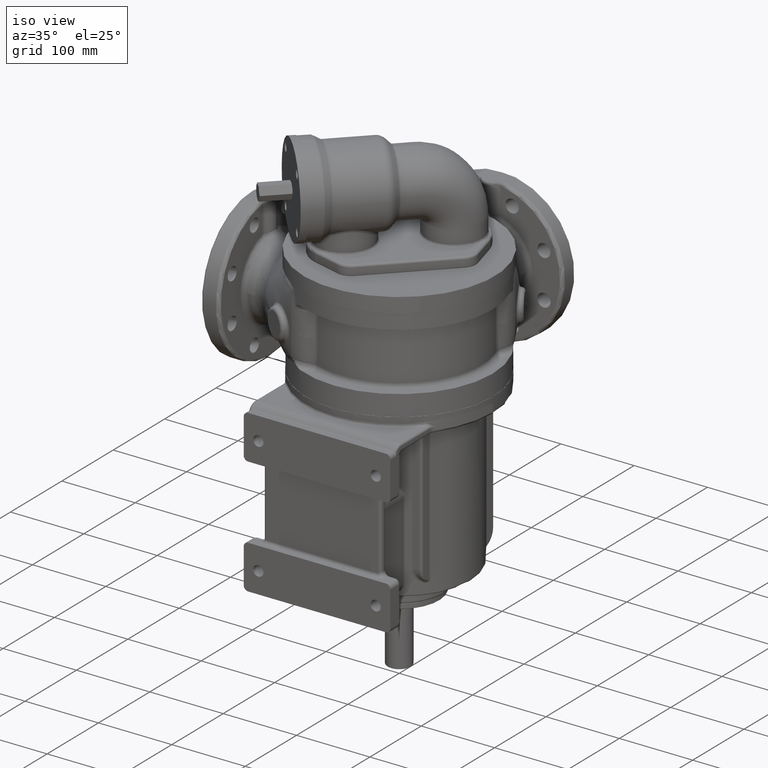
[diagram: clean part render]
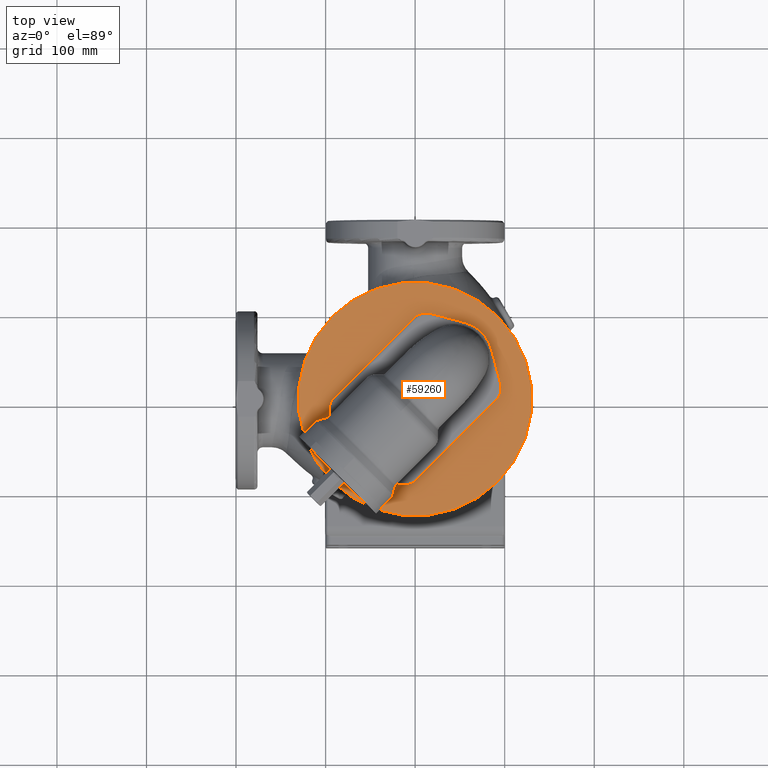
[diagram: tour spotlight — one face highlighted and labeled with its STEP entity id]
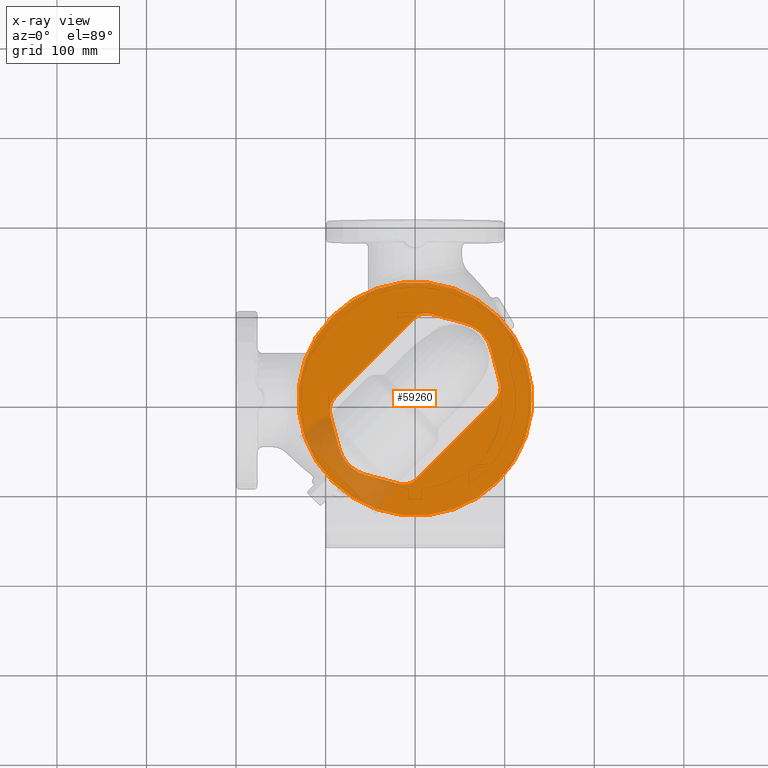
[diagram: x-ray of the same camera — body ghosted, this tour face saturated]
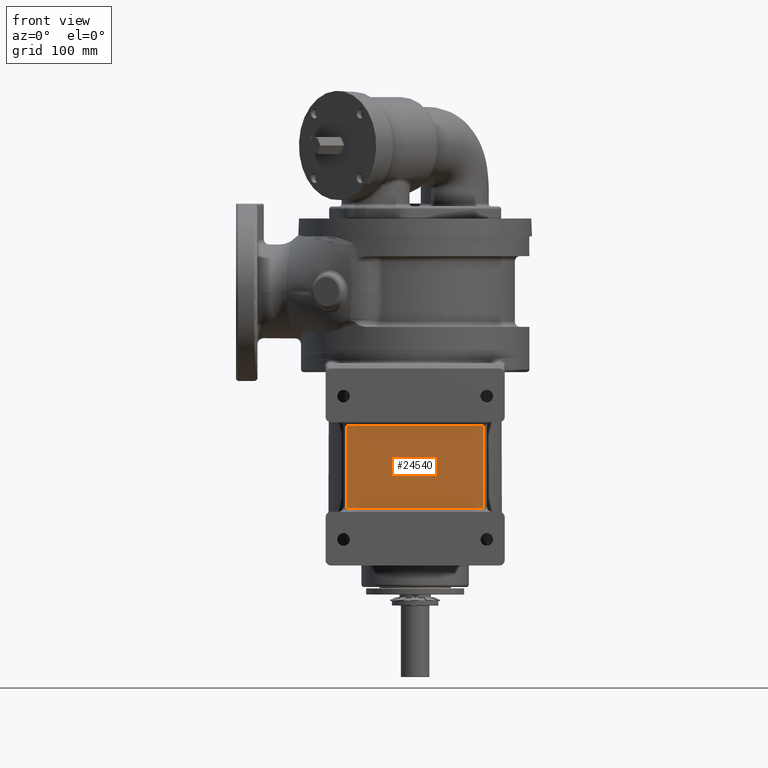
[diagram: tour spotlight — one face highlighted and labeled with its STEP entity id]
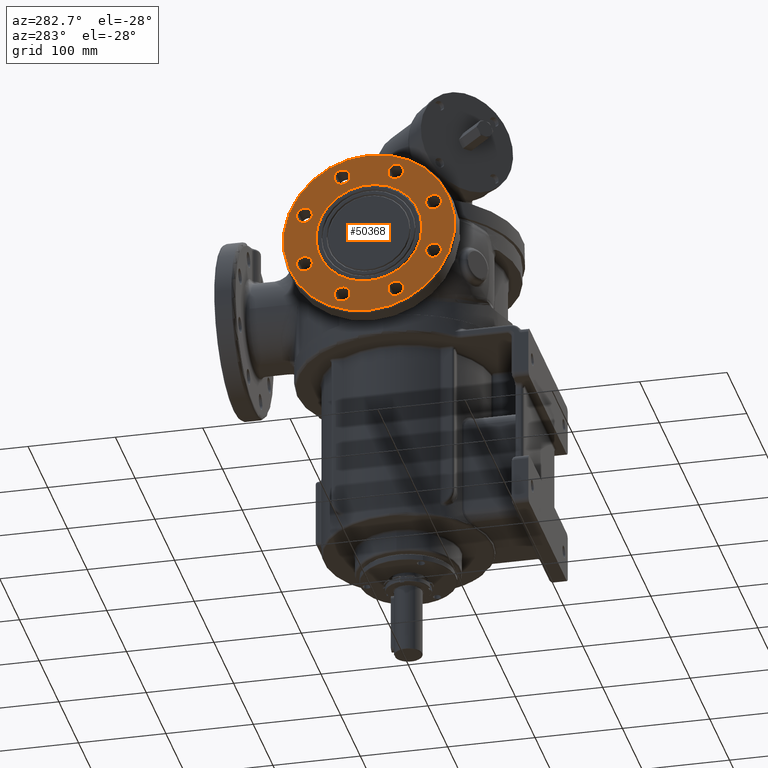
[diagram: tour spotlight — one face highlighted and labeled with its STEP entity id]
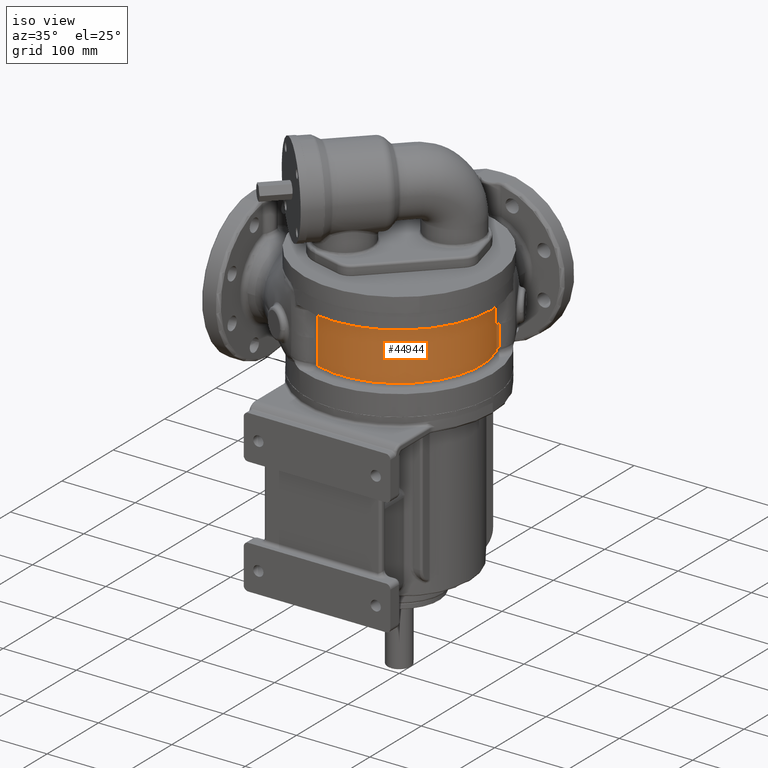
[diagram: tour spotlight — one face highlighted and labeled with its STEP entity id]
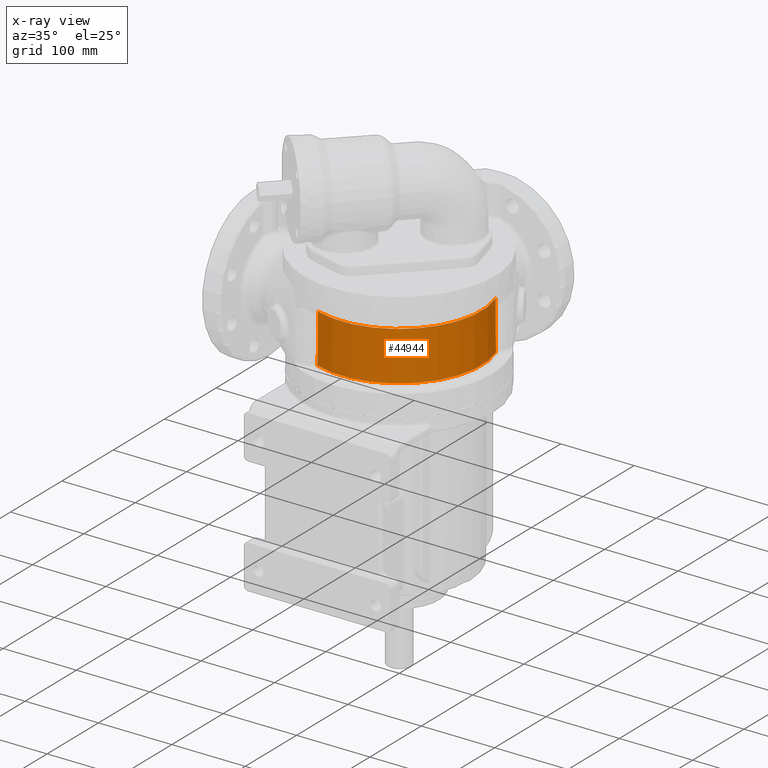
[diagram: x-ray of the same camera — body ghosted, this tour face saturated]
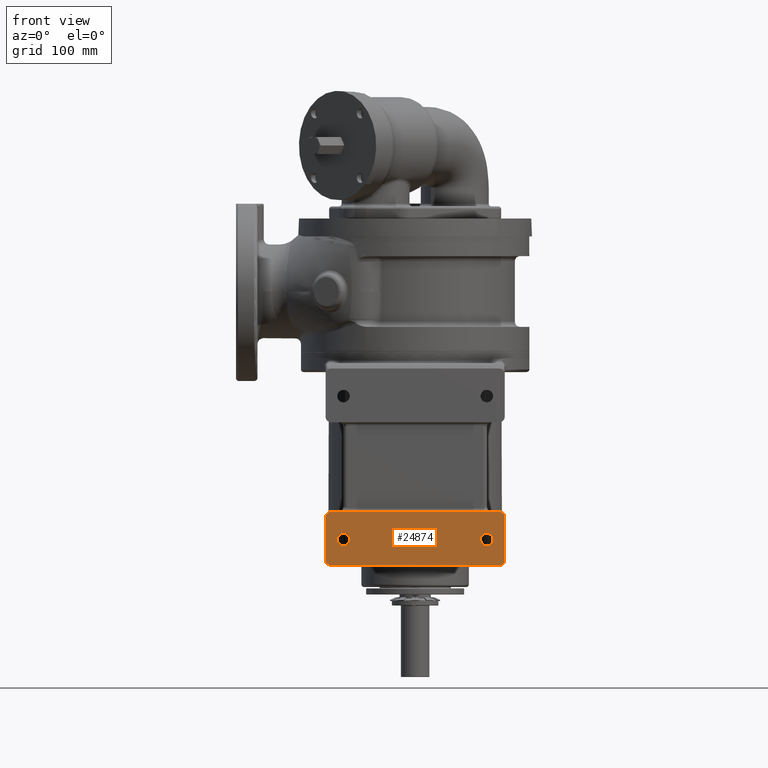
[diagram: tour spotlight — one face highlighted and labeled with its STEP entity id]
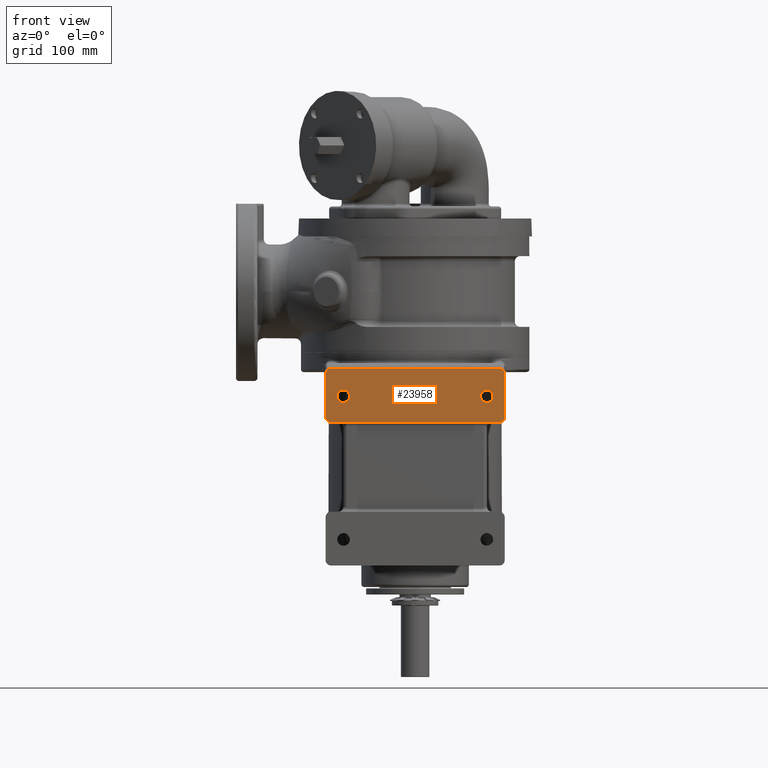
[diagram: tour spotlight — one face highlighted and labeled with its STEP entity id]
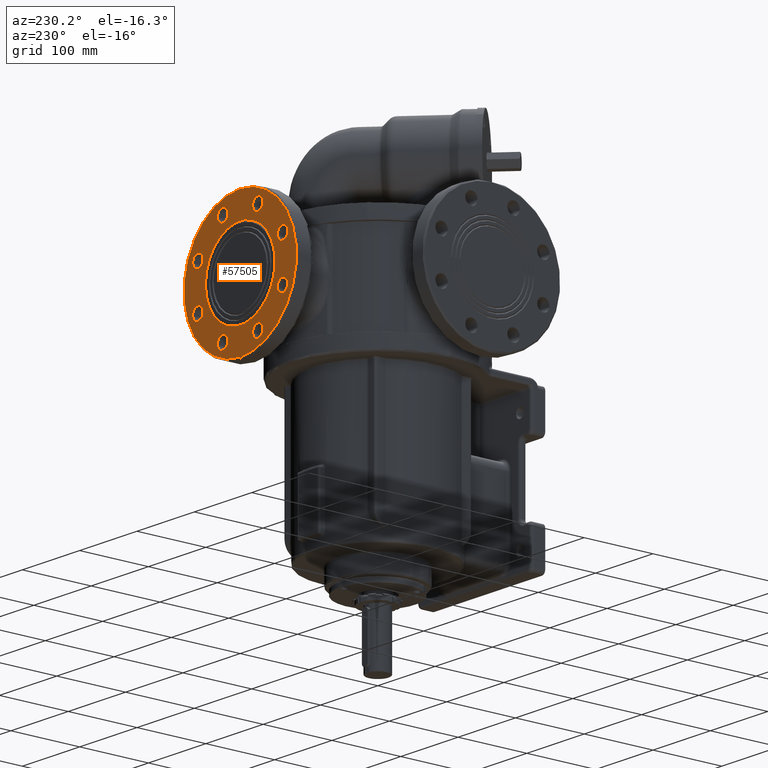
[diagram: tour spotlight — one face highlighted and labeled with its STEP entity id]
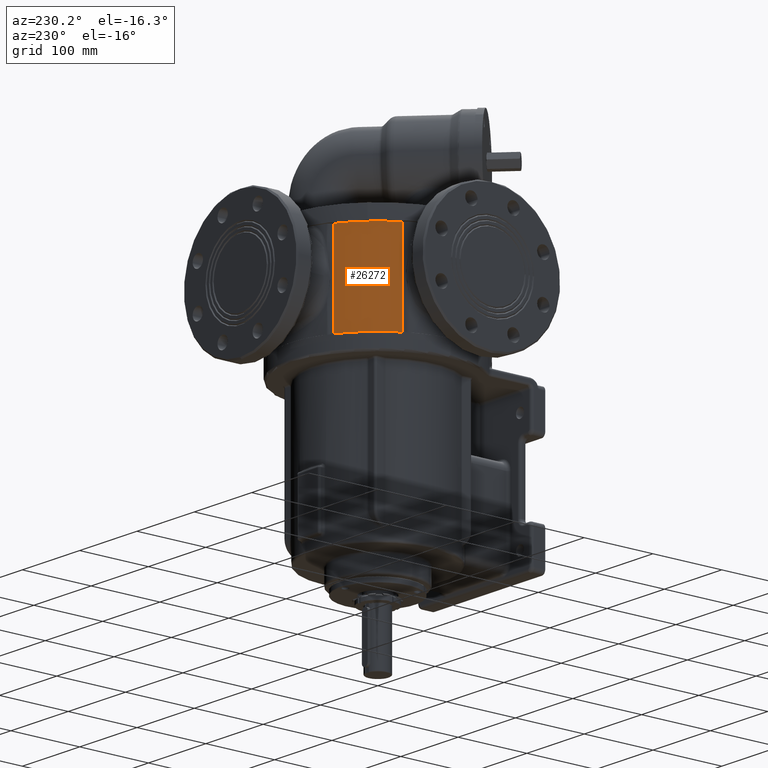
[diagram: tour spotlight — one face highlighted and labeled with its STEP entity id]
A machine part: a face-by-face anatomy tour. The part has 786 B-rep faces; the first image is the clean iso view, then the 8 largest visible faces are spotlighted one at a time (largest first), each with its STEP entity span.

Face 1 — top view, entity #59260. An x-ray twin of the same camera follows (body ghosted, this face saturated) — the face is partly hidden behind the body. In plain terms, the highlighted planar face has unit normal (0, 0, -1).
Definition (entity closure, byte-faithful):
#4889=CARTESIAN_POINT('',(4.151211584959E-13,-2.059281486263E-13,1.575E2));
#4890=DIRECTION('',(0.E0,0.E0,1.E0));
#4891=DIRECTION('',(-7.071067811865E-1,7.071067811865E-1,0.E0));
#4892=AXIS2_PLACEMENT_3D('',#4889,#4890,#4891);
#4908=CARTESIAN_POINT('',(4.151211584959E-13,-2.059281486263E-13,1.575E2));
#4909=DIRECTION('',(0.E0,0.E0,1.E0));
#4910=DIRECTION('',(7.071067811865E-1,-7.071067811865E-1,0.E0));
#4911=AXIS2_PLACEMENT_3D('',#4908,#4909,#4910);
#13292=DIRECTION('',(9.659258262891E-1,-2.588190451025E-1,0.E0));
#13293=VECTOR('',#13292,3.897114317030E1);
#13294=CARTESIAN_POINT('',(1.744672404163E1,9.494426693568E1,1.575E2));
#13295=LINE('',#13294,#13293);
#13301=CARTESIAN_POINT('',(4.419417382416E1,4.419417382416E1,1.575E2));
#13302=DIRECTION('',(0.E0,0.E0,1.E0));
#13303=DIRECTION('',(9.659258262891E-1,2.588190451024E-1,0.E0));
#13304=AXIS2_PLACEMENT_3D('',#13301,#13302,#13303);
#13311=DIRECTION('',(2.588190451025E-1,-9.659258262891E-1,0.E0));
#13312=VECTOR('',#13311,3.897114317030E1);
#13313=CARTESIAN_POINT('',(8.485779287379E1,5.508995770983E1,1.575E2));
#13314=LINE('',#13313,#13312);
#13320=CARTESIAN_POINT('',(7.601397897755E1,1.237436867076E1,1.575E2));
#13321=DIRECTION('',(0.E0,0.E0,1.E0));
#13322=DIRECTION('',(7.071067811865E-1,-7.071067811866E-1,0.E0));
#13323=AXIS2_PLACEMENT_3D('',#13320,#13321,#13322);
#13330=DIRECTION('',(-7.071067811865E-1,-7.071067811865E-1,0.E0));
#13331=VECTOR('',#13330,1.25E2);
#13332=CARTESIAN_POINT('',(8.987191156481E1,-1.483563916494E0,1.575E2));
#13333=LINE('',#13332,#13331);
#13339=CARTESIAN_POINT('',(-1.237436867076E1,-7.601397897755E1,1.575E2));
#13340=DIRECTION('',(0.E0,0.E0,1.E0));
#13341=DIRECTION('',(-2.588190451026E-1,-9.659258262891E-1,0.E0));
#13342=AXIS2_PLACEMENT_3D('',#13339,#13340,#13341);
#13349=DIRECTION('',(-9.659258262891E-1,2.588190451025E-1,0.E0));
#13350=VECTOR('',#13349,3.897114317030E1);
#13351=CARTESIAN_POINT('',(-1.744672404163E1,-9.494426693568E1,1.575E2));
#13352=LINE('',#13351,#13350);
#13358=CARTESIAN_POINT('',(-4.419417382416E1,-4.419417382416E1,1.575E2));
#13359=DIRECTION('',(0.E0,0.E0,1.E0));
#13360=DIRECTION('',(-9.659258262891E-1,-2.588190451025E-1,0.E0));
#13361=AXIS2_PLACEMENT_3D('',#13358,#13359,#13360);
#13368=DIRECTION('',(-2.588190451025E-1,9.659258262891E-1,0.E0));
#13369=VECTOR('',#13368,3.897114317030E1);
#13370=CARTESIAN_POINT('',(-8.485779287379E1,-5.508995770984E1,1.575E2));
#13371=LINE('',#13370,#13369);
#13377=CARTESIAN_POINT('',(-7.601397897755E1,-1.237436867076E1,1.575E2));
#13378=DIRECTION('',(0.E0,0.E0,1.E0));
#13379=DIRECTION('',(-7.071067811866E-1,7.071067811865E-1,0.E0));
#13380=AXIS2_PLACEMENT_3D('',#13377,#13378,#13379);
#13387=DIRECTION('',(7.071067811865E-1,7.071067811865E-1,0.E0));
#13388=VECTOR('',#13387,1.25E2);
#13389=CARTESIAN_POINT('',(-8.987191156481E1,1.483563916493E0,1.575E2));
#13390=LINE('',#13389,#13388);
#13396=CARTESIAN_POINT('',(1.237436867076E1,7.601397897755E1,1.575E2));
#13397=DIRECTION('',(0.E0,0.E0,1.E0));
#13398=DIRECTION('',(2.588190451026E-1,9.659258262890E-1,0.E0));
#13399=AXIS2_PLACEMENT_3D('',#13396,#13397,#13398);
#20380=CARTESIAN_POINT('',(9.227743494484E1,-9.227743494484E1,1.575E2));
#20381=CARTESIAN_POINT('',(-9.227743494484E1,9.227743494484E1,1.575E2));
#20382=VERTEX_POINT('',#20380);
#20383=VERTEX_POINT('',#20381);
#20426=CARTESIAN_POINT('',(1.744672404163E1,9.494426693568E1,1.575E2));
#20427=CARTESIAN_POINT('',(5.508995770983E1,8.485779287379E1,1.575E2));
#20428=VERTEX_POINT('',#20426);
#20429=VERTEX_POINT('',#20427);
#20430=CARTESIAN_POINT('',(-1.483563916494E0,8.987191156481E1,1.575E2));
#20431=VERTEX_POINT('',#20430);
#20432=CARTESIAN_POINT('',(-8.987191156481E1,1.483563916493E0,1.575E2));
#20433=VERTEX_POINT('',#20432);
#20434=CARTESIAN_POINT('',(-9.494426693568E1,-1.744672404163E1,1.575E2));
#20435=VERTEX_POINT('',#20434);
#20436=CARTESIAN_POINT('',(-8.485779287379E1,-5.508995770984E1,1.575E2));
#20437=VERTEX_POINT('',#20436);
#20438=CARTESIAN_POINT('',(-5.508995770983E1,-8.485779287379E1,1.575E2));
#20439=VERTEX_POINT('',#20438);
#20440=CARTESIAN_POINT('',(-1.744672404163E1,-9.494426693568E1,1.575E2));
#20441=VERTEX_POINT('',#20440);
#20442=CARTESIAN_POINT('',(1.483563916495E0,-8.987191156481E1,1.575E2));
#20443=VERTEX_POINT('',#20442);
#20444=CARTESIAN_POINT('',(8.987191156481E1,-1.483563916494E0,1.575E2));
#20445=VERTEX_POINT('',#20444);
#20446=CARTESIAN_POINT('',(9.494426693568E1,1.744672404163E1,1.575E2));
#20447=VERTEX_POINT('',#20446);
#20448=CARTESIAN_POINT('',(8.485779287379E1,5.508995770983E1,1.575E2));
#20449=VERTEX_POINT('',#20448);
#59225=CARTESIAN_POINT('',(4.096656353416E-13,-2.004726254720E-13,1.575E2));
#59226=DIRECTION('',(0.E0,0.E0,-1.E0));
#59227=DIRECTION('',(-7.071067811865E-1,-7.071067811865E-1,0.E0));
#59228=AXIS2_PLACEMENT_3D('',#59225,#59226,#59227);
#59229=PLANE('',#59228);
#59230=ORIENTED_EDGE('',*,*,#25825,.F.);
#59231=ORIENTED_EDGE('',*,*,#25798,.F.);
#59232=EDGE_LOOP('',(#59230,#59231));
#59233=FACE_OUTER_BOUND('',#59232,.F.);
#59235=ORIENTED_EDGE('',*,*,#59234,.F.);
#59237=ORIENTED_EDGE('',*,*,#59236,.T.);
#59239=ORIENTED_EDGE('',*,*,#59238,.F.);
#59241=ORIENTED_EDGE('',*,*,#59240,.T.);
#59243=ORIENTED_EDGE('',*,*,#59242,.F.);
#59245=ORIENTED_EDGE('',*,*,#59244,.T.);
#59247=ORIENTED_EDGE('',*,*,#59246,.F.);
#59249=ORIENTED_EDGE('',*,*,#59248,.T.);
#59251=ORIENTED_EDGE('',*,*,#59250,.F.);
#59253=ORIENTED_EDGE('',*,*,#59252,.T.);
#59255=ORIENTED_EDGE('',*,*,#59254,.F.);
#59257=ORIENTED_EDGE('',*,*,#59256,.T.);
#59258=EDGE_LOOP('',(#59235,#59237,#59239,#59241,#59243,#59245,#59247,#59249,
#59251,#59253,#59255,#59257));
#59259=FACE_BOUND('',#59258,.F.);
#59260=ADVANCED_FACE('',(#59233,#59259),#59229,.F.);
#4893=CIRCLE('',#4892,1.305E2);
#4912=CIRCLE('',#4911,1.305E2);
#13305=CIRCLE('',#13304,4.209807621135E1);
#13324=CIRCLE('',#13323,1.959807621135E1);
#13343=CIRCLE('',#13342,1.959807621135E1);
#13362=CIRCLE('',#13361,4.209807621135E1);
#13381=CIRCLE('',#13380,1.959807621135E1);
#13400=CIRCLE('',#13399,1.959807621135E1);
#25798=EDGE_CURVE('',#20383,#20382,#4893,.T.);
#25825=EDGE_CURVE('',#20382,#20383,#4912,.T.);
#59234=EDGE_CURVE('',#20428,#20429,#13295,.T.);
#59236=EDGE_CURVE('',#20428,#20431,#13400,.T.);
#59238=EDGE_CURVE('',#20433,#20431,#13390,.T.);
#59240=EDGE_CURVE('',#20433,#20435,#13381,.T.);
#59242=EDGE_CURVE('',#20437,#20435,#13371,.T.);
#59244=EDGE_CURVE('',#20437,#20439,#13362,.T.);
#59246=EDGE_CURVE('',#20441,#20439,#13352,.T.);
#59248=EDGE_CURVE('',#20441,#20443,#13343,.T.);
#59250=EDGE_CURVE('',#20445,#20443,#13333,.T.);
#59252=EDGE_CURVE('',#20445,#20447,#13324,.T.);
#59254=EDGE_CURVE('',#20449,#20447,#13314,.T.);
#59256=EDGE_CURVE('',#20449,#20429,#13305,.T.);

Face 2 — front view, entity #24540. In plain terms, the highlighted planar face has unit normal (0, -1, 0).
Definition (entity closure, byte-faithful):
#3702=DIRECTION('',(0.E0,8.671710692516E-13,1.E0));
#3703=VECTOR('',#3702,9.2E1);
#3704=CARTESIAN_POINT('',(7.600000000001E1,-1.499999996378E2,-1.66E2));
#3705=LINE('',#3704,#3703);
#3706=DIRECTION('',(1.E0,5.246797148796E-13,0.E0));
#3707=VECTOR('',#3706,1.52E2);
#3708=CARTESIAN_POINT('',(-7.600000000001E1,-1.499999996378E2,-7.4E1));
#3709=LINE('',#3708,#3707);
#3710=DIRECTION('',(-1.E0,5.248666998101E-13,0.E0));
#3711=VECTOR('',#3710,1.52E2);
#3712=CARTESIAN_POINT('',(7.600000000001E1,-1.499999996378E2,-1.66E2));
#3713=LINE('',#3712,#3711);
#3784=DIRECTION('',(0.E0,8.668621376273E-13,-1.E0));
#3785=VECTOR('',#3784,9.2E1);
#3786=CARTESIAN_POINT('',(-7.600000000001E1,-1.499999996378E2,-7.4E1));
#3787=LINE('',#3786,#3785);
#19010=CARTESIAN_POINT('',(-7.600000000001E1,-1.499999996378E2,-7.4E1));
#19011=CARTESIAN_POINT('',(7.600000000001E1,-1.499999996377E2,-7.4E1));
#19012=VERTEX_POINT('',#19010);
#19013=VERTEX_POINT('',#19011);
#19022=CARTESIAN_POINT('',(7.600000000001E1,-1.499999996378E2,-1.66E2));
#19023=CARTESIAN_POINT('',(-7.600000000001E1,-1.499999996377E2,-1.66E2));
#19024=VERTEX_POINT('',#19022);
#19025=VERTEX_POINT('',#19023);
#24526=CARTESIAN_POINT('',(8.E1,-1.5E2,-1.7E2));
#24527=DIRECTION('',(0.E0,-1.E0,0.E0));
#24528=DIRECTION('',(0.E0,0.E0,1.E0));
#24529=AXIS2_PLACEMENT_3D('',#24526,#24527,#24528);
#24530=PLANE('',#24529);
#24532=ORIENTED_EDGE('',*,*,#24531,.T.);
#24533=ORIENTED_EDGE('',*,*,#24516,.F.);
#24535=ORIENTED_EDGE('',*,*,#24534,.T.);
#24537=ORIENTED_EDGE('',*,*,#24536,.F.);
#24538=EDGE_LOOP('',(#24532,#24533,#24535,#24537));
#24539=FACE_OUTER_BOUND('',#24538,.F.);
#24540=ADVANCED_FACE('',(#24539),#24530,.T.);
#24516=EDGE_CURVE('',#19024,#19013,#3705,.T.);
#24531=EDGE_CURVE('',#19012,#19013,#3709,.T.);
#24534=EDGE_CURVE('',#19024,#19025,#3713,.T.);
#24536=EDGE_CURVE('',#19012,#19025,#3787,.T.);

Face 3 — auxiliary view, entity #50368. In plain terms, the highlighted planar face has unit normal (-1, 0, 0).
Definition (entity closure, byte-faithful):
#10026=CARTESIAN_POINT('',(-2.000000000329E2,-1.728029751951E-8,
1.740000000377E2));
#10045=CARTESIAN_POINT('',(-2.E2,1.794671120480E-9,7.600000000034E1));
#10046=DIRECTION('',(1.E0,0.E0,0.E0));
#10047=DIRECTION('',(0.E0,-4.083120006959E-9,-1.E0));
#10048=AXIS2_PLACEMENT_3D('',#10045,#10046,#10047);
#10050=CARTESIAN_POINT('',(-2.E2,1.760421184273E-9,7.6E1));
#10051=DIRECTION('',(1.E0,0.E0,0.E0));
#10052=DIRECTION('',(0.E0,-1.936570488275E-10,1.E0));
#10053=AXIS2_PLACEMENT_3D('',#10050,#10051,#10052);
#10055=CARTESIAN_POINT('',(-2.E2,-3.061467458921E1,2.089637399097E0));
#10056=DIRECTION('',(-1.E0,0.E0,0.E0));
#10057=DIRECTION('',(0.E0,1.E0,0.E0));
#10058=AXIS2_PLACEMENT_3D('',#10055,#10056,#10057);
#10060=CARTESIAN_POINT('',(-2.E2,-3.061467458921E1,2.089637399097E0));
#10061=DIRECTION('',(-1.E0,0.E0,0.E0));
#10062=DIRECTION('',(0.E0,-1.E0,0.E0));
#10063=AXIS2_PLACEMENT_3D('',#10060,#10061,#10062);
#10065=CARTESIAN_POINT('',(-2.E2,-7.391036260090E1,4.538532541079E1));
#10066=DIRECTION('',(-1.E0,0.E0,0.E0));
#10067=DIRECTION('',(0.E0,7.071067811866E-1,-7.071067811865E-1));
#10068=AXIS2_PLACEMENT_3D('',#10065,#10066,#10067);
#10070=CARTESIAN_POINT('',(-2.E2,-7.391036260090E1,4.538532541079E1));
#10071=DIRECTION('',(-1.E0,0.E0,0.E0));
#10072=DIRECTION('',(0.E0,-7.071067811865E-1,7.071067811865E-1));
#10073=AXIS2_PLACEMENT_3D('',#10070,#10071,#10072);
#10075=CARTESIAN_POINT('',(-2.E2,-7.391036260090E1,1.066146745892E2));
#10076=DIRECTION('',(-1.E0,0.E0,0.E0));
#10077=DIRECTION('',(0.E0,0.E0,-1.E0));
#10078=AXIS2_PLACEMENT_3D('',#10075,#10076,#10077);
#10080=CARTESIAN_POINT('',(-2.E2,-7.391036260090E1,1.066146745892E2));
#10081=DIRECTION('',(-1.E0,0.E0,0.E0));
#10082=DIRECTION('',(0.E0,0.E0,1.E0));
#10083=AXIS2_PLACEMENT_3D('',#10080,#10081,#10082);
#10085=CARTESIAN_POINT('',(-2.E2,-3.061467458921E1,1.499103626009E2));
#10086=DIRECTION('',(-1.E0,0.E0,0.E0));
#10087=DIRECTION('',(0.E0,-7.071067811865E-1,-7.071067811866E-1));
#10088=AXIS2_PLACEMENT_3D('',#10085,#10086,#10087);
#10090=CARTESIAN_POINT('',(-2.E2,-3.061467458921E1,1.499103626009E2));
#10091=DIRECTION('',(-1.E0,0.E0,0.E0));
#10092=DIRECTION('',(0.E0,7.071067811865E-1,7.071067811865E-1));
#10093=AXIS2_PLACEMENT_3D('',#10090,#10091,#10092);
#10095=CARTESIAN_POINT('',(-2.E2,3.061467458921E1,1.499103626009E2));
#10096=DIRECTION('',(-1.E0,0.E0,0.E0));
#10097=DIRECTION('',(0.E0,-1.E0,0.E0));
#10098=AXIS2_PLACEMENT_3D('',#10095,#10096,#10097);
#10100=CARTESIAN_POINT('',(-2.E2,3.061467458921E1,1.499103626009E2));
#10101=DIRECTION('',(-1.E0,0.E0,0.E0));
#10102=DIRECTION('',(0.E0,1.E0,0.E0));
#10103=AXIS2_PLACEMENT_3D('',#10100,#10101,#10102);
#10105=CARTESIAN_POINT('',(-2.E2,7.391036260090E1,1.066146745892E2));
#10106=DIRECTION('',(-1.E0,0.E0,0.E0));
#10107=DIRECTION('',(0.E0,-7.071067811865E-1,7.071067811866E-1));
#10108=AXIS2_PLACEMENT_3D('',#10105,#10106,#10107);
#10110=CARTESIAN_POINT('',(-2.E2,7.391036260090E1,1.066146745892E2));
#10111=DIRECTION('',(-1.E0,0.E0,0.E0));
#10112=DIRECTION('',(0.E0,7.071067811866E-1,-7.071067811865E-1));
#10113=AXIS2_PLACEMENT_3D('',#10110,#10111,#10112);
#10115=CARTESIAN_POINT('',(-2.E2,7.391036260090E1,4.538532541079E1));
#10116=DIRECTION('',(-1.E0,0.E0,0.E0));
#10117=DIRECTION('',(0.E0,0.E0,1.E0));
#10118=AXIS2_PLACEMENT_3D('',#10115,#10116,#10117);
#10120=CARTESIAN_POINT('',(-2.E2,7.391036260090E1,4.538532541079E1));
#10121=DIRECTION('',(-1.E0,0.E0,0.E0));
#10122=DIRECTION('',(0.E0,0.E0,-1.E0));
#10123=AXIS2_PLACEMENT_3D('',#10120,#10121,#10122);
#10125=CARTESIAN_POINT('',(-2.E2,3.061467458921E1,2.089637399098E0));
#10126=DIRECTION('',(-1.E0,0.E0,0.E0));
#10127=DIRECTION('',(0.E0,7.071067811865E-1,7.071067811866E-1));
#10128=AXIS2_PLACEMENT_3D('',#10125,#10126,#10127);
#10130=CARTESIAN_POINT('',(-2.E2,3.061467458921E1,2.089637399098E0));
#10131=DIRECTION('',(-1.E0,0.E0,0.E0));
#10132=DIRECTION('',(0.E0,-7.071067811865E-1,-7.071067811866E-1));
#10133=AXIS2_PLACEMENT_3D('',#10130,#10131,#10132);
#10135=CARTESIAN_POINT('',(-2.E2,-9.908696684785E-14,7.6E1));
#10136=DIRECTION('',(-1.E0,0.E0,0.E0));
#10137=DIRECTION('',(0.E0,-1.E0,0.E0));
#10138=AXIS2_PLACEMENT_3D('',#10135,#10136,#10137);
#10140=CARTESIAN_POINT('',(-2.E2,-9.908696684785E-14,7.6E1));
#10141=DIRECTION('',(-1.E0,0.E0,0.E0));
#10142=DIRECTION('',(0.E0,1.E0,0.E0));
#10143=AXIS2_PLACEMENT_3D('',#10140,#10141,#10142);
#19642=CARTESIAN_POINT('',(-2.E2,-2.161467458921E1,2.089637399097E0));
#19643=CARTESIAN_POINT('',(-2.E2,-3.961467458921E1,2.089637399097E0));
#19644=VERTEX_POINT('',#19642);
#19645=VERTEX_POINT('',#19643);
#19650=CARTESIAN_POINT('',(-2.E2,-6.754640157022E1,3.902136438011E1));
#19651=CARTESIAN_POINT('',(-2.E2,-8.027432363158E1,5.174928644147E1));
#19652=VERTEX_POINT('',#19650);
#19653=VERTEX_POINT('',#19651);
#19658=CARTESIAN_POINT('',(-2.E2,-7.391036260090E1,9.761467458921E1));
#19659=CARTESIAN_POINT('',(-2.E2,-7.391036260090E1,1.156146745892E2));
#19660=VERTEX_POINT('',#19658);
#19661=VERTEX_POINT('',#19659);
#19666=CARTESIAN_POINT('',(-2.E2,-3.697863561989E1,1.435464015702E2));
#19667=CARTESIAN_POINT('',(-2.E2,-2.425071355853E1,1.562743236316E2));
#19668=VERTEX_POINT('',#19666);
#19669=VERTEX_POINT('',#19667);
#19674=CARTESIAN_POINT('',(-2.E2,2.161467458921E1,1.499103626009E2));
#19675=CARTESIAN_POINT('',(-2.E2,3.961467458921E1,1.499103626009E2));
#19676=VERTEX_POINT('',#19674);
#19677=VERTEX_POINT('',#19675);
#19678=CARTESIAN_POINT('',(-2.E2,6.754640157022E1,1.129786356199E2));
#19679=CARTESIAN_POINT('',(-2.E2,8.027432363158E1,1.002507135585E2));
#19680=VERTEX_POINT('',#19678);
#19681=VERTEX_POINT('',#19679);
#19690=CARTESIAN_POINT('',(-2.E2,7.391036260090E1,5.438532541079E1));
#19691=CARTESIAN_POINT('',(-2.E2,7.391036260090E1,3.638532541079E1));
#19692=VERTEX_POINT('',#19690);
#19693=VERTEX_POINT('',#19691);
#19698=CARTESIAN_POINT('',(-2.E2,3.697863561989E1,8.453598429777E0));
#19699=CARTESIAN_POINT('',(-2.E2,2.425071355853E1,-4.274323631581E0));
#19700=VERTEX_POINT('',#19698);
#19701=VERTEX_POINT('',#19699);
#19805=CARTESIAN_POINT('',(-2.E2,-6.065470053838E1,7.6E1));
#19806=CARTESIAN_POINT('',(-2.E2,6.065470053838E1,7.6E1));
#19807=VERTEX_POINT('',#19805);
#19808=VERTEX_POINT('',#19806);
#19886=VERTEX_POINT('',#10026);
#19887=CARTESIAN_POINT('',(-2.E2,-3.983510895607E-7,-2.199999999948E1));
#19888=VERTEX_POINT('',#19887);
#50304=CARTESIAN_POINT('',(-2.E2,-8.684049885638E-14,7.6E1));
#50305=DIRECTION('',(-1.E0,0.E0,0.E0));
#50306=DIRECTION('',(0.E0,1.E0,0.E0));
#50307=AXIS2_PLACEMENT_3D('',#50304,#50305,#50306);
#50308=PLANE('',#50307);
#50309=ORIENTED_EDGE('',*,*,#50295,.T.);
#50311=ORIENTED_EDGE('',*,*,#50310,.T.);
#50312=EDGE_LOOP('',(#50309,#50311));
#50313=FACE_OUTER_BOUND('',#50312,.F.);
#50315=ORIENTED_EDGE('',*,*,#50314,.T.);
#50317=ORIENTED_EDGE('',*,*,#50316,.T.);
#50318=EDGE_LOOP('',(#50315,#50317));
#50319=FACE_BOUND('',#50318,.F.);
#50321=ORIENTED_EDGE('',*,*,#50320,.T.);
#50323=ORIENTED_EDGE('',*,*,#50322,.T.);
#50324=EDGE_LOOP('',(#50321,#50323));
#50325=FACE_BOUND('',#50324,.F.);
#50327=ORIENTED_EDGE('',*,*,#50326,.T.);
#50329=ORIENTED_EDGE('',*,*,#50328,.T.);
#50330=EDGE_LOOP('',(#50327,#50329));
#50331=FACE_BOUND('',#50330,.F.);
#50333=ORIENTED_EDGE('',*,*,#50332,.T.);
#50335=ORIENTED_EDGE('',*,*,#50334,.T.);
#50336=EDGE_LOOP('',(#50333,#50335));
#50337=FACE_BOUND('',#50336,.F.);
#50339=ORIENTED_EDGE('',*,*,#50338,.T.);
#50341=ORIENTED_EDGE('',*,*,#50340,.T.);
#50342=EDGE_LOOP('',(#50339,#50341));
#50343=FACE_BOUND('',#50342,.F.);
#50345=ORIENTED_EDGE('',*,*,#50344,.T.);
#50347=ORIENTED_EDGE('',*,*,#50346,.T.);
#50348=EDGE_LOOP('',(#50345,#50347));
#50349=FACE_BOUND('',#50348,.F.);
#50351=ORIENTED_EDGE('',*,*,#50350,.T.);
#50353=ORIENTED_EDGE('',*,*,#50352,.T.);
#50354=EDGE_LOOP('',(#50351,#50353));
#50355=FACE_BOUND('',#50354,.F.);
#50357=ORIENTED_EDGE('',*,*,#50356,.T.);
#50359=ORIENTED_EDGE('',*,*,#50358,.T.);
#50360=EDGE_LOOP('',(#50357,#50359));
#50361=FACE_BOUND('',#50360,.F.);
#50363=ORIENTED_EDGE('',*,*,#50362,.T.);
#50365=ORIENTED_EDGE('',*,*,#50364,.T.);
#50366=EDGE_LOOP('',(#50363,#50365));
#50367=FACE_BOUND('',#50366,.F.);
#50368=ADVANCED_FACE('',(#50313,#50319,#50325,#50331,#50337,#50343,#50349,
#50355,#50361,#50367),#50308,.T.);
#10049=CIRCLE('',#10048,9.799999999982E1);
#10054=CIRCLE('',#10053,9.800000000017E1);
#10059=CIRCLE('',#10058,9.E0);
#10064=CIRCLE('',#10063,9.E0);
#10069=CIRCLE('',#10068,9.E0);
#10074=CIRCLE('',#10073,9.E0);
#10079=CIRCLE('',#10078,9.E0);
#10084=CIRCLE('',#10083,9.E0);
#10089=CIRCLE('',#10088,9.E0);
#10094=CIRCLE('',#10093,9.E0);
#10099=CIRCLE('',#10098,9.E0);
#10104=CIRCLE('',#10103,9.E0);
#10109=CIRCLE('',#10108,9.E0);
#10114=CIRCLE('',#10113,9.E0);
#10119=CIRCLE('',#10118,9.E0);
#10124=CIRCLE('',#10123,9.E0);
#10129=CIRCLE('',#10128,9.E0);
#10134=CIRCLE('',#10133,9.E0);
#10139=CIRCLE('',#10138,6.065470053838E1);
#10144=CIRCLE('',#10143,6.065470053838E1);
#50295=EDGE_CURVE('',#19888,#19886,#10049,.T.);
#50310=EDGE_CURVE('',#19886,#19888,#10054,.T.);
#50314=EDGE_CURVE('',#19644,#19645,#10059,.T.);
#50316=EDGE_CURVE('',#19645,#19644,#10064,.T.);
#50320=EDGE_CURVE('',#19652,#19653,#10069,.T.);
#50322=EDGE_CURVE('',#19653,#19652,#10074,.T.);
#50326=EDGE_CURVE('',#19660,#19661,#10079,.T.);
#50328=EDGE_CURVE('',#19661,#19660,#10084,.T.);
#50332=EDGE_CURVE('',#19668,#19669,#10089,.T.);
#50334=EDGE_CURVE('',#19669,#19668,#10094,.T.);
#50338=EDGE_CURVE('',#19676,#19677,#10099,.T.);
#50340=EDGE_CURVE('',#19677,#19676,#10104,.T.);
#50344=EDGE_CURVE('',#19680,#19681,#10109,.T.);
#50346=EDGE_CURVE('',#19681,#19680,#10114,.T.);
#50350=EDGE_CURVE('',#19692,#19693,#10119,.T.);
#50352=EDGE_CURVE('',#19693,#19692,#10124,.T.);
#50356=EDGE_CURVE('',#19700,#19701,#10129,.T.);
#50358=EDGE_CURVE('',#19701,#19700,#10134,.T.);
#50362=EDGE_CURVE('',#19807,#19808,#10139,.T.);
#50364=EDGE_CURVE('',#19808,#19807,#10144,.T.);

Face 4 — iso view, entity #44944. An x-ray twin of the same camera follows (body ghosted, this face saturated) — the face is partly hidden behind the body. In plain terms, the highlighted cylindrical surface (partial cylindrical patch) has radius 112 mm, axis along (0, 0, -1).
Definition (entity closure, byte-faithful):
#8634=CARTESIAN_POINT('',(2.271485395805E-13,-1.276625873796E-13,1.095E2));
#8635=DIRECTION('',(0.E0,0.E0,-1.E0));
#8636=DIRECTION('',(9.440568084017E-1,3.297828717661E-1,0.E0));
#8637=AXIS2_PLACEMENT_3D('',#8634,#8635,#8636);
#8697=CARTESIAN_POINT('',(1.057343558257E2,3.693570085663E1,1.095000000006E2));
#8698=CARTESIAN_POINT('',(1.057507397524E2,3.688879922104E1,1.080536248846E2));
#8699=CARTESIAN_POINT('',(1.057757255246E2,3.681709127064E1,1.053136993865E2));
#8700=CARTESIAN_POINT('',(1.057971535330E2,3.675544857038E1,1.017011561775E2));
#8701=CARTESIAN_POINT('',(1.058082079478E2,3.672360629107E1,9.847210910574E1));
#8702=CARTESIAN_POINT('',(1.058121609012E2,3.671221323997E1,9.555813559353E1));
#8703=CARTESIAN_POINT('',(1.058109941668E2,3.671557599276E1,9.298864629499E1));
#8704=CARTESIAN_POINT('',(1.058095008715E2,3.671987928735E1,9.012399167348E1));
#8705=CARTESIAN_POINT('',(1.058074602562E2,3.672575891572E1,8.702881297912E1));
#8706=CARTESIAN_POINT('',(1.058054775531E2,3.673147057053E1,8.367394825669E1));
#8707=CARTESIAN_POINT('',(1.058039878547E2,3.673576125495E1,8.003307166363E1));
#8708=CARTESIAN_POINT('',(1.058036466515E2,3.673674400257E1,7.738002160868E1));
#8709=CARTESIAN_POINT('',(1.058036422280E2,3.673675667889E1,7.599997386492E1));
#8711=CARTESIAN_POINT('',(1.058036422280E2,3.673675667889E1,7.599997386492E1));
#8712=CARTESIAN_POINT('',(1.058036420409E2,3.673675723023E1,7.504756054036E1));
#8713=CARTESIAN_POINT('',(1.058031016631E2,3.673831357921E1,7.321892350316E1));
#8714=CARTESIAN_POINT('',(1.058007766200E2,3.674500910776E1,7.071565928676E1));
#8715=CARTESIAN_POINT('',(1.057970655952E2,3.675569302157E1,6.841871887104E1));
#8716=CARTESIAN_POINT('',(1.057919755746E2,3.677034143900E1,6.631918601601E1));
#8717=CARTESIAN_POINT('',(1.057854885843E2,3.678900042936E1,6.438762024325E1));
#8718=CARTESIAN_POINT('',(1.057780368241E2,3.681042152498E1,6.265827795807E1));
#8719=CARTESIAN_POINT('',(1.057685147320E2,3.683777492759E1,6.096615390125E1));
#8720=CARTESIAN_POINT('',(1.057558994514E2,3.687397913521E1,5.905828305972E1));
#8721=CARTESIAN_POINT('',(1.057394112355E2,3.692124144492E1,5.698093524060E1));
#8722=CARTESIAN_POINT('',(1.057168341460E2,3.698584691430E1,5.468311680752E1));
#8723=CARTESIAN_POINT('',(1.056845822222E2,3.707795048585E1,5.211956397482E1));
#8724=CARTESIAN_POINT('',(1.056337394174E2,3.722260592194E1,4.919087477489E1));
#8725=CARTESIAN_POINT('',(1.055950753952E2,3.733207620260E1,4.753546671350E1));
#8726=CARTESIAN_POINT('',(1.055743115281E2,3.739070399660E1,4.673688707519E1));
#8728=CARTESIAN_POINT('',(1.055743115281E2,3.739070399660E1,4.673688707519E1));
#8729=CARTESIAN_POINT('',(1.055690277198E2,3.740562309755E1,4.653367223009E1));
#8730=CARTESIAN_POINT('',(1.055566229484E2,3.744062898074E1,4.612749795659E1));
#8731=CARTESIAN_POINT('',(1.055324716999E2,3.750865978605E1,4.551882277171E1));
#8732=CARTESIAN_POINT('',(1.055027401841E2,3.759221902197E1,4.491128202434E1));
#8733=CARTESIAN_POINT('',(1.054673906864E2,3.769129577095E1,4.430518196426E1));
#8734=CARTESIAN_POINT('',(1.054263841301E2,3.780586117019E1,4.370091276247E1));
#8735=CARTESIAN_POINT('',(1.053796750091E2,3.793588315364E1,4.309884772092E1));
#8736=CARTESIAN_POINT('',(1.053447180260E2,3.803279246891E1,4.269932693602E1));
#8737=CARTESIAN_POINT('',(1.053262684407E2,3.808381781350E1,4.250000000522E1));
#8739=CARTESIAN_POINT('',(-3.808383962353E1,-1.053262605961E2,
4.250000003173E1));
#8740=CARTESIAN_POINT('',(-3.803295278636E1,-1.053446605110E2,
4.269879151547E1));
#8741=CARTESIAN_POINT('',(-3.793619340108E1,-1.053795630728E2,
4.309747947094E1));
#8742=CARTESIAN_POINT('',(-3.780618135106E1,-1.054262693960E2,
4.369932908497E1));
#8743=CARTESIAN_POINT('',(-3.769150685667E1,-1.054673152895E2,
4.430396858132E1));
#8744=CARTESIAN_POINT('',(-3.759228560540E1,-1.055027165048E2,
4.491078688742E1));
#8745=CARTESIAN_POINT('',(-3.750862897620E1,-1.055324826676E2,
4.551904276923E1));
#8746=CARTESIAN_POINT('',(-3.744057164521E1,-1.055566432751E2,
4.612808909759E1));
#8747=CARTESIAN_POINT('',(-3.740560313068E1,-1.055690348037E2,
4.653394548199E1));
#8748=CARTESIAN_POINT('',(-3.739070399660E1,-1.055743115281E2,
4.673688707519E1));
#8750=CARTESIAN_POINT('',(-3.739070399660E1,-1.055743115281E2,
4.673688707519E1));
#8751=CARTESIAN_POINT('',(-3.733226980443E1,-1.055950068196E2,
4.753282872965E1));
#8752=CARTESIAN_POINT('',(-3.722224038897E1,-1.056338692836E2,
4.919420737045E1));
#8753=CARTESIAN_POINT('',(-3.707539582332E1,-1.056854793484E2,
5.217362028874E1));
#8754=CARTESIAN_POINT('',(-3.698182047693E1,-1.057182428777E2,
5.480612689590E1));
#8755=CARTESIAN_POINT('',(-3.691724059023E1,-1.057408080496E2,
5.713971792602E1));
#8756=CARTESIAN_POINT('',(-3.687050696789E1,-1.057571099443E2,
5.922718136771E1));
#8757=CARTESIAN_POINT('',(-3.683502067959E1,-1.057694738505E2,
6.112398168835E1));
#8758=CARTESIAN_POINT('',(-3.680875455601E1,-1.057786168449E2,
6.278286258760E1));
#8759=CARTESIAN_POINT('',(-3.678772910552E1,-1.057859306796E2,
6.450400586842E1));
#8760=CARTESIAN_POINT('',(-3.676958723191E1,-1.057922376840E2,
6.641482864448E1));
#8761=CARTESIAN_POINT('',(-3.675527626449E1,-1.057972103715E2,
6.849483582966E1));
#8762=CARTESIAN_POINT('',(-3.674483424127E1,-1.058008373475E2,
7.076912073534E1));
#8763=CARTESIAN_POINT('',(-3.673827759991E1,-1.058031141482E2,
7.324914895849E1));
#8764=CARTESIAN_POINT('',(-3.673675823026E1,-1.058036417087E2,
7.505812100577E1));
#8765=CARTESIAN_POINT('',(-3.673675667889E1,-1.058036422280E2,
7.599997386492E1));
#8767=CARTESIAN_POINT('',(-3.673675667889E1,-1.058036422280E2,
7.599997386492E1));
#8768=CARTESIAN_POINT('',(-3.673674421914E1,-1.058036465773E2,
7.739251560924E1));
#8769=CARTESIAN_POINT('',(-3.673573926321E1,-1.058039954903E2,
8.006636341463E1));
#8770=CARTESIAN_POINT('',(-3.673139593450E1,-1.058055034649E2,
8.372594398828E1));
#8771=CARTESIAN_POINT('',(-3.672565022462E1,-1.058074979827E2,
8.708678573303E1));
#8772=CARTESIAN_POINT('',(-3.671979909447E1,-1.058095287009E2,
9.017081215503E1));
#8773=CARTESIAN_POINT('',(-3.671552896994E1,-1.058110104821E2,
9.302028758470E1));
#8774=CARTESIAN_POINT('',(-3.671223892012E1,-1.058121519925E2,
9.558428682839E1));
#8775=CARTESIAN_POINT('',(-3.672380512346E1,-1.058081389499E2,
9.850069286824E1));
#8776=CARTESIAN_POINT('',(-3.675579133390E1,-1.057970344713E2,
1.017255051592E2));
#8777=CARTESIAN_POINT('',(-3.681747142884E1,-1.057755931897E2,
1.053299868712E2));
#8778=CARTESIAN_POINT('',(-3.688900614557E1,-1.057506674899E2,
1.080597279271E2));
#8779=CARTESIAN_POINT('',(-3.693570973351E1,-1.057343527264E2,1.095E2));
#8998=CARTESIAN_POINT('',(8.133126212396E-14,-7.051134631609E-14,4.25E1));
#8999=DIRECTION('',(0.E0,0.E0,1.E0));
#9000=DIRECTION('',(-3.400349202994E-1,-9.404128098750E-1,0.E0));
#9001=AXIS2_PLACEMENT_3D('',#8998,#8999,#9000);
#20029=VERTEX_POINT('',#8697);
#20030=VERTEX_POINT('',#8709);
#20031=VERTEX_POINT('',#8726);
#20033=VERTEX_POINT('',#8737);
#20034=VERTEX_POINT('',#8767);
#20035=VERTEX_POINT('',#8779);
#20037=VERTEX_POINT('',#8750);
#20039=VERTEX_POINT('',#8739);
#44924=CARTESIAN_POINT('',(6.827299847113E-14,-6.539332472831E-14,3.65E1));
#44925=DIRECTION('',(0.E0,0.E0,-1.E0));
#44926=DIRECTION('',(-1.E0,0.E0,0.E0));
#44927=AXIS2_PLACEMENT_3D('',#44924,#44925,#44926);
#44928=CYLINDRICAL_SURFACE('',#44927,1.12E2);
#44929=ORIENTED_EDGE('',*,*,#44340,.F.);
#44930=ORIENTED_EDGE('',*,*,#44623,.T.);
#44931=ORIENTED_EDGE('',*,*,#44914,.T.);
#44933=ORIENTED_EDGE('',*,*,#44932,.T.);
#44935=ORIENTED_EDGE('',*,*,#44934,.F.);
#44937=ORIENTED_EDGE('',*,*,#44936,.T.);
#44939=ORIENTED_EDGE('',*,*,#44938,.T.);
#44941=ORIENTED_EDGE('',*,*,#44940,.T.);
#44942=EDGE_LOOP('',(#44929,#44930,#44931,#44933,#44935,#44937,#44939,#44941));
#44943=FACE_OUTER_BOUND('',#44942,.F.);
#44944=ADVANCED_FACE('',(#44943),#44928,.T.);
#8638=CIRCLE('',#8637,1.12E2);
#8710=B_SPLINE_CURVE_WITH_KNOTS('',3,(#8697,#8698,#8699,#8700,#8701,#8702,#8703,
#8704,#8705,#8706,#8707,#8708,#8709),.UNSPECIFIED.,.F.,.F.,(4,1,1,1,1,1,1,1,1,1,
4),(0.E0,1.E-1,2.E-1,3.E-1,4.E-1,5.E-1,6.E-1,7.E-1,8.E-1,9.E-1,1.E0),
.UNSPECIFIED.);
#8727=B_SPLINE_CURVE_WITH_KNOTS('',3,(#8711,#8712,#8713,#8714,#8715,#8716,#8717,
#8718,#8719,#8720,#8721,#8722,#8723,#8724,#8725,#8726),.UNSPECIFIED.,.F.,.F.,(4,
1,1,1,1,1,1,1,1,1,1,1,1,4),(0.E0,7.692307692308E-2,1.538461538462E-1,
2.307692307692E-1,3.076923076923E-1,3.846153846154E-1,4.615384615385E-1,
5.384615384615E-1,6.153846153846E-1,6.923076923077E-1,7.692307692308E-1,
8.461538461538E-1,9.230769230769E-1,1.E0),.UNSPECIFIED.);
#8738=B_SPLINE_CURVE_WITH_KNOTS('',3,(#8728,#8729,#8730,#8731,#8732,#8733,#8734,
#8735,#8736,#8737),.UNSPECIFIED.,.F.,.F.,(4,1,1,1,1,1,1,4),(0.E0,
1.428571428571E-1,2.857142857143E-1,4.285714285714E-1,5.714285714286E-1,
7.142857142857E-1,8.571428571429E-1,1.E0),.UNSPECIFIED.);
#8749=B_SPLINE_CURVE_WITH_KNOTS('',3,(#8739,#8740,#8741,#8742,#8743,#8744,#8745,
#8746,#8747,#8748),.UNSPECIFIED.,.F.,.F.,(4,1,1,1,1,1,1,4),(0.E0,
1.428571428571E-1,2.857142857143E-1,4.285714285714E-1,5.714285714286E-1,
7.142857142857E-1,8.571428571429E-1,1.E0),.UNSPECIFIED.);
#8766=B_SPLINE_CURVE_WITH_KNOTS('',3,(#8750,#8751,#8752,#8753,#8754,#8755,#8756,
#8757,#8758,#8759,#8760,#8761,#8762,#8763,#8764,#8765),.UNSPECIFIED.,.F.,.F.,(4,
1,1,1,1,1,1,1,1,1,1,1,1,4),(0.E0,7.692307692308E-2,1.538461538462E-1,
2.307692307692E-1,3.076923076923E-1,3.846153846154E-1,4.615384615385E-1,
5.384615384615E-1,6.153846153846E-1,6.923076923077E-1,7.692307692308E-1,
8.461538461538E-1,9.230769230769E-1,1.E0),.UNSPECIFIED.);
#8780=B_SPLINE_CURVE_WITH_KNOTS('',3,(#8767,#8768,#8769,#8770,#8771,#8772,#8773,
#8774,#8775,#8776,#8777,#8778,#8779),.UNSPECIFIED.,.F.,.F.,(4,1,1,1,1,1,1,1,1,1,
4),(0.E0,1.E-1,2.E-1,3.E-1,4.E-1,5.E-1,6.E-1,7.E-1,8.E-1,9.E-1,1.E0),
.UNSPECIFIED.);
#9002=CIRCLE('',#9001,1.12E2);
#44340=EDGE_CURVE('',#20029,#20035,#8638,.T.);
#44623=EDGE_CURVE('',#20029,#20030,#8710,.T.);
#44914=EDGE_CURVE('',#20030,#20031,#8727,.T.);
#44932=EDGE_CURVE('',#20031,#20033,#8738,.T.);
#44934=EDGE_CURVE('',#20039,#20033,#9002,.T.);
#44936=EDGE_CURVE('',#20039,#20037,#8749,.T.);
#44938=EDGE_CURVE('',#20037,#20034,#8766,.T.);
#44940=EDGE_CURVE('',#20034,#20035,#8780,.T.);

Face 5 — front view, entity #24874. In plain terms, the highlighted planar face has unit normal (0, -1, 0).
Definition (entity closure, byte-faithful):
#3832=DIRECTION('',(-1.E0,0.E0,0.E0));
#3833=VECTOR('',#3832,1.88E2);
#3834=CARTESIAN_POINT('',(9.4E1,-1.6E2,-1.7E2));
#3835=LINE('',#3834,#3833);
#3948=DIRECTION('',(0.E0,0.E0,1.E0));
#3949=VECTOR('',#3948,4.8E1);
#3950=CARTESIAN_POINT('',(1.E2,-1.6E2,-2.24E2));
#3951=LINE('',#3950,#3949);
#3964=CARTESIAN_POINT('',(9.4E1,-1.6E2,-1.76E2));
#3965=DIRECTION('',(0.E0,1.E0,0.E0));
#3966=DIRECTION('',(0.E0,0.E0,1.E0));
#3967=AXIS2_PLACEMENT_3D('',#3964,#3965,#3966);
#3974=CARTESIAN_POINT('',(9.4E1,-1.6E2,-2.24E2));
#3975=DIRECTION('',(0.E0,1.E0,0.E0));
#3976=DIRECTION('',(1.E0,0.E0,0.E0));
#3977=AXIS2_PLACEMENT_3D('',#3974,#3975,#3976);
#3984=DIRECTION('',(1.E0,0.E0,0.E0));
#3985=VECTOR('',#3984,1.88E2);
#3986=CARTESIAN_POINT('',(-9.4E1,-1.6E2,-2.3E2));
#3987=LINE('',#3986,#3985);
#4000=CARTESIAN_POINT('',(-9.4E1,-1.6E2,-2.24E2));
#4001=DIRECTION('',(0.E0,1.E0,0.E0));
#4002=DIRECTION('',(0.E0,0.E0,-1.E0));
#4003=AXIS2_PLACEMENT_3D('',#4000,#4001,#4002);
#4010=DIRECTION('',(0.E0,0.E0,-1.E0));
#4011=VECTOR('',#4010,4.8E1);
#4012=CARTESIAN_POINT('',(-1.E2,-1.6E2,-1.76E2));
#4013=LINE('',#4012,#4011);
#4026=CARTESIAN_POINT('',(-9.4E1,-1.6E2,-1.76E2));
#4027=DIRECTION('',(0.E0,1.E0,0.E0));
#4028=DIRECTION('',(-1.E0,0.E0,0.E0));
#4029=AXIS2_PLACEMENT_3D('',#4026,#4027,#4028);
#4036=CARTESIAN_POINT('',(-8.E1,-1.6E2,-2.01E2));
#4037=DIRECTION('',(0.E0,-1.E0,0.E0));
#4038=DIRECTION('',(0.E0,0.E0,1.E0));
#4039=AXIS2_PLACEMENT_3D('',#4036,#4037,#4038);
#4045=CARTESIAN_POINT('',(-8.E1,-1.6E2,-2.01E2));
#4046=DIRECTION('',(0.E0,-1.E0,0.E0));
#4047=DIRECTION('',(0.E0,0.E0,-1.E0));
#4048=AXIS2_PLACEMENT_3D('',#4045,#4046,#4047);
#4054=CARTESIAN_POINT('',(8.E1,-1.6E2,-2.01E2));
#4055=DIRECTION('',(0.E0,-1.E0,0.E0));
#4056=DIRECTION('',(0.E0,0.E0,1.E0));
#4057=AXIS2_PLACEMENT_3D('',#4054,#4055,#4056);
#4063=CARTESIAN_POINT('',(8.E1,-1.6E2,-2.01E2));
#4064=DIRECTION('',(0.E0,-1.E0,0.E0));
#4065=DIRECTION('',(0.E0,0.E0,-1.E0));
#4066=AXIS2_PLACEMENT_3D('',#4063,#4064,#4065);
#19143=CARTESIAN_POINT('',(1.E2,-1.6E2,-2.24E2));
#19144=CARTESIAN_POINT('',(1.E2,-1.6E2,-1.76E2));
#19145=VERTEX_POINT('',#19143);
#19146=VERTEX_POINT('',#19144);
#19147=CARTESIAN_POINT('',(9.4E1,-1.6E2,-1.7E2));
#19148=CARTESIAN_POINT('',(-9.4E1,-1.6E2,-1.7E2));
#19149=VERTEX_POINT('',#19147);
#19150=VERTEX_POINT('',#19148);
#19151=CARTESIAN_POINT('',(-1.E2,-1.6E2,-1.76E2));
#19152=CARTESIAN_POINT('',(-1.E2,-1.6E2,-2.24E2));
#19153=VERTEX_POINT('',#19151);
#19154=VERTEX_POINT('',#19152);
#19155=CARTESIAN_POINT('',(-9.4E1,-1.6E2,-2.3E2));
#19156=CARTESIAN_POINT('',(9.4E1,-1.6E2,-2.3E2));
#19157=VERTEX_POINT('',#19155);
#19158=VERTEX_POINT('',#19156);
#19183=CARTESIAN_POINT('',(-8.E1,-1.6E2,-1.94E2));
#19184=CARTESIAN_POINT('',(-8.E1,-1.6E2,-2.08E2));
#19185=VERTEX_POINT('',#19183);
#19186=VERTEX_POINT('',#19184);
#19187=CARTESIAN_POINT('',(8.E1,-1.6E2,-1.94E2));
#19188=CARTESIAN_POINT('',(8.E1,-1.6E2,-2.08E2));
#19189=VERTEX_POINT('',#19187);
#19190=VERTEX_POINT('',#19188);
#24840=CARTESIAN_POINT('',(0.E0,-1.6E2,1.E0));
#24841=DIRECTION('',(0.E0,-1.E0,0.E0));
#24842=DIRECTION('',(0.E0,0.E0,1.E0));
#24843=AXIS2_PLACEMENT_3D('',#24840,#24841,#24842);
#24844=PLANE('',#24843);
#24846=ORIENTED_EDGE('',*,*,#24845,.F.);
#24848=ORIENTED_EDGE('',*,*,#24847,.T.);
#24850=ORIENTED_EDGE('',*,*,#24849,.F.);
#24852=ORIENTED_EDGE('',*,*,#24851,.T.);
#24854=ORIENTED_EDGE('',*,*,#24853,.F.);
#24856=ORIENTED_EDGE('',*,*,#24855,.T.);
#24857=ORIENTED_EDGE('',*,*,#24820,.F.);
#24859=ORIENTED_EDGE('',*,*,#24858,.T.);
#24860=EDGE_LOOP('',(#24846,#24848,#24850,#24852,#24854,#24856,#24857,#24859));
#24861=FACE_OUTER_BOUND('',#24860,.F.);
#24863=ORIENTED_EDGE('',*,*,#24862,.T.);
#24865=ORIENTED_EDGE('',*,*,#24864,.T.);
#24866=EDGE_LOOP('',(#24863,#24865));
#24867=FACE_BOUND('',#24866,.F.);
#24869=ORIENTED_EDGE('',*,*,#24868,.T.);
#24871=ORIENTED_EDGE('',*,*,#24870,.T.);
#24872=EDGE_LOOP('',(#24869,#24871));
#24873=FACE_BOUND('',#24872,.F.);
#24874=ADVANCED_FACE('',(#24861,#24867,#24873),#24844,.T.);
#3968=CIRCLE('',#3967,6.E0);
#3978=CIRCLE('',#3977,6.E0);
#4004=CIRCLE('',#4003,6.E0);
#4030=CIRCLE('',#4029,6.E0);
#4040=CIRCLE('',#4039,7.E0);
#4049=CIRCLE('',#4048,7.E0);
#4058=CIRCLE('',#4057,7.E0);
#4067=CIRCLE('',#4066,7.E0);
#24820=EDGE_CURVE('',#19149,#19150,#3835,.T.);
#24845=EDGE_CURVE('',#19145,#19146,#3951,.T.);
#24847=EDGE_CURVE('',#19145,#19158,#3978,.T.);
#24849=EDGE_CURVE('',#19157,#19158,#3987,.T.);
#24851=EDGE_CURVE('',#19157,#19154,#4004,.T.);
#24853=EDGE_CURVE('',#19153,#19154,#4013,.T.);
#24855=EDGE_CURVE('',#19153,#19150,#4030,.T.);
#24858=EDGE_CURVE('',#19149,#19146,#3968,.T.);
#24862=EDGE_CURVE('',#19185,#19186,#4040,.T.);
#24864=EDGE_CURVE('',#19186,#19185,#4049,.T.);
#24868=EDGE_CURVE('',#19189,#19190,#4058,.T.);
#24870=EDGE_CURVE('',#19190,#19189,#4067,.T.);

Face 6 — front view, entity #23958. In plain terms, the highlighted planar face has unit normal (0, -1, 0).
Definition (entity closure, byte-faithful):
#3227=DIRECTION('',(0.E0,0.E0,1.E0));
#3228=VECTOR('',#3227,4.8E1);
#3229=CARTESIAN_POINT('',(1.E2,-1.6E2,-6.4E1));
#3230=LINE('',#3229,#3228);
#3290=CARTESIAN_POINT('',(9.4E1,-1.6E2,-6.4E1));
#3291=DIRECTION('',(0.E0,1.E0,0.E0));
#3292=DIRECTION('',(1.E0,0.E0,0.E0));
#3293=AXIS2_PLACEMENT_3D('',#3290,#3291,#3292);
#3459=DIRECTION('',(0.E0,0.E0,-1.E0));
#3460=VECTOR('',#3459,4.8E1);
#3461=CARTESIAN_POINT('',(-1.E2,-1.6E2,-1.6E1));
#3462=LINE('',#3461,#3460);
#3522=CARTESIAN_POINT('',(-9.4E1,-1.6E2,-6.4E1));
#3523=DIRECTION('',(0.E0,1.E0,0.E0));
#3524=DIRECTION('',(0.E0,0.E0,-1.E0));
#3525=AXIS2_PLACEMENT_3D('',#3522,#3523,#3524);
#3532=DIRECTION('',(1.E0,0.E0,0.E0));
#3533=VECTOR('',#3532,1.88E2);
#3534=CARTESIAN_POINT('',(-9.4E1,-1.6E2,-7.E1));
#3535=LINE('',#3534,#3533);
#15659=CARTESIAN_POINT('',(9.4E1,-1.6E2,-1.6E1));
#15660=DIRECTION('',(0.E0,1.E0,0.E0));
#15661=DIRECTION('',(0.E0,0.E0,1.E0));
#15662=AXIS2_PLACEMENT_3D('',#15659,#15660,#15661);
#15673=DIRECTION('',(-1.E0,0.E0,0.E0));
#15674=VECTOR('',#15673,1.88E2);
#15675=CARTESIAN_POINT('',(9.4E1,-1.6E2,-1.E1));
#15676=LINE('',#15675,#15674);
#15689=CARTESIAN_POINT('',(-9.4E1,-1.6E2,-1.6E1));
#15690=DIRECTION('',(0.E0,1.E0,0.E0));
#15691=DIRECTION('',(-1.E0,0.E0,0.E0));
#15692=AXIS2_PLACEMENT_3D('',#15689,#15690,#15691);
#15845=CARTESIAN_POINT('',(-8.E1,-1.6E2,-4.1E1));
#15846=DIRECTION('',(0.E0,-1.E0,0.E0));
#15847=DIRECTION('',(0.E0,0.E0,1.E0));
#15848=AXIS2_PLACEMENT_3D('',#15845,#15846,#15847);
#15854=CARTESIAN_POINT('',(-8.E1,-1.6E2,-4.1E1));
#15855=DIRECTION('',(0.E0,-1.E0,0.E0));
#15856=DIRECTION('',(0.E0,0.E0,-1.E0));
#15857=AXIS2_PLACEMENT_3D('',#15854,#15855,#15856);
#15863=CARTESIAN_POINT('',(8.E1,-1.6E2,-4.1E1));
#15864=DIRECTION('',(0.E0,-1.E0,0.E0));
#15865=DIRECTION('',(0.E0,0.E0,1.E0));
#15866=AXIS2_PLACEMENT_3D('',#15863,#15864,#15865);
#15872=CARTESIAN_POINT('',(8.E1,-1.6E2,-4.1E1));
#15873=DIRECTION('',(0.E0,-1.E0,0.E0));
#15874=DIRECTION('',(0.E0,0.E0,-1.E0));
#15875=AXIS2_PLACEMENT_3D('',#15872,#15873,#15874);
#19159=CARTESIAN_POINT('',(1.E2,-1.6E2,-6.4E1));
#19160=CARTESIAN_POINT('',(1.E2,-1.6E2,-1.6E1));
#19161=VERTEX_POINT('',#19159);
#19162=VERTEX_POINT('',#19160);
#19163=CARTESIAN_POINT('',(9.4E1,-1.6E2,-1.E1));
#19164=CARTESIAN_POINT('',(-9.4E1,-1.6E2,-1.E1));
#19165=VERTEX_POINT('',#19163);
#19166=VERTEX_POINT('',#19164);
#19167=CARTESIAN_POINT('',(-1.E2,-1.6E2,-1.6E1));
#19168=CARTESIAN_POINT('',(-1.E2,-1.6E2,-6.4E1));
#19169=VERTEX_POINT('',#19167);
#19170=VERTEX_POINT('',#19168);
#19171=CARTESIAN_POINT('',(-9.4E1,-1.6E2,-7.E1));
#19172=CARTESIAN_POINT('',(9.4E1,-1.6E2,-7.E1));
#19173=VERTEX_POINT('',#19171);
#19174=VERTEX_POINT('',#19172);
#19175=CARTESIAN_POINT('',(-8.E1,-1.6E2,-3.4E1));
#19176=CARTESIAN_POINT('',(-8.E1,-1.6E2,-4.8E1));
#19177=VERTEX_POINT('',#19175);
#19178=VERTEX_POINT('',#19176);
#19179=CARTESIAN_POINT('',(8.E1,-1.6E2,-3.4E1));
#19180=CARTESIAN_POINT('',(8.E1,-1.6E2,-4.8E1));
#19181=VERTEX_POINT('',#19179);
#19182=VERTEX_POINT('',#19180);
#23924=CARTESIAN_POINT('',(0.E0,-1.6E2,1.E0));
#23925=DIRECTION('',(0.E0,-1.E0,0.E0));
#23926=DIRECTION('',(0.E0,0.E0,1.E0));
#23927=AXIS2_PLACEMENT_3D('',#23924,#23925,#23926);
#23928=PLANE('',#23927);
#23929=ORIENTED_EDGE('',*,*,#23904,.F.);
#23931=ORIENTED_EDGE('',*,*,#23930,.T.);
#23933=ORIENTED_EDGE('',*,*,#23932,.F.);
#23935=ORIENTED_EDGE('',*,*,#23934,.T.);
#23937=ORIENTED_EDGE('',*,*,#23936,.F.);
#23939=ORIENTED_EDGE('',*,*,#23938,.T.);
#23941=ORIENTED_EDGE('',*,*,#23940,.F.);
#23943=ORIENTED_EDGE('',*,*,#23942,.T.);
#23944=EDGE_LOOP('',(#23929,#23931,#23933,#23935,#23937,#23939,#23941,#23943));
#23945=FACE_OUTER_BOUND('',#23944,.F.);
#23947=ORIENTED_EDGE('',*,*,#23946,.T.);
#23949=ORIENTED_EDGE('',*,*,#23948,.T.);
#23950=EDGE_LOOP('',(#23947,#23949));
#23951=FACE_BOUND('',#23950,.F.);
#23953=ORIENTED_EDGE('',*,*,#23952,.T.);
#23955=ORIENTED_EDGE('',*,*,#23954,.T.);
#23956=EDGE_LOOP('',(#23953,#23955));
#23957=FACE_BOUND('',#23956,.F.);
#23958=ADVANCED_FACE('',(#23945,#23951,#23957),#23928,.T.);
#3294=CIRCLE('',#3293,6.E0);
#3526=CIRCLE('',#3525,6.E0);
#15663=CIRCLE('',#15662,6.E0);
#15693=CIRCLE('',#15692,6.E0);
#15849=CIRCLE('',#15848,7.E0);
#15858=CIRCLE('',#15857,7.E0);
#15867=CIRCLE('',#15866,7.E0);
#15876=CIRCLE('',#15875,7.E0);
#23904=EDGE_CURVE('',#19161,#19162,#3230,.T.);
#23930=EDGE_CURVE('',#19161,#19174,#3294,.T.);
#23932=EDGE_CURVE('',#19173,#19174,#3535,.T.);
#23934=EDGE_CURVE('',#19173,#19170,#3526,.T.);
#23936=EDGE_CURVE('',#19169,#19170,#3462,.T.);
#23938=EDGE_CURVE('',#19169,#19166,#15693,.T.);
#23940=EDGE_CURVE('',#19165,#19166,#15676,.T.);
#23942=EDGE_CURVE('',#19165,#19162,#15663,.T.);
#23946=EDGE_CURVE('',#19177,#19178,#15849,.T.);
#23948=EDGE_CURVE('',#19178,#19177,#15858,.T.);
#23952=EDGE_CURVE('',#19181,#19182,#15867,.T.);
#23954=EDGE_CURVE('',#19182,#19181,#15876,.T.);

Face 7 — auxiliary view, entity #57505. In plain terms, the highlighted planar face has unit normal (0, 1, 0).
Definition (entity closure, byte-faithful):
#12349=CARTESIAN_POINT('',(-2.543606851677E-8,2.000000000340E2,
1.740000000389E2));
#12368=CARTESIAN_POINT('',(-1.760603545557E-9,2.E2,7.6E1));
#12369=DIRECTION('',(0.E0,-1.E0,0.E0));
#12370=DIRECTION('',(4.082777592272E-9,0.E0,-1.E0));
#12371=AXIS2_PLACEMENT_3D('',#12368,#12369,#12370);
#12373=CARTESIAN_POINT('',(-1.794849929050E-9,2.E2,7.600000000034E1));
#12374=DIRECTION('',(0.E0,-1.E0,0.E0));
#12375=DIRECTION('',(-2.402874345758E-10,0.E0,1.E0));
#12376=AXIS2_PLACEMENT_3D('',#12373,#12374,#12375);
#12378=CARTESIAN_POINT('',(3.061467458921E1,2.E2,1.499103626009E2));
#12379=DIRECTION('',(0.E0,1.E0,0.E0));
#12380=DIRECTION('',(-1.E0,0.E0,0.E0));
#12381=AXIS2_PLACEMENT_3D('',#12378,#12379,#12380);
#12383=CARTESIAN_POINT('',(3.061467458921E1,2.E2,1.499103626009E2));
#12384=DIRECTION('',(0.E0,1.E0,0.E0));
#12385=DIRECTION('',(1.E0,0.E0,0.E0));
#12386=AXIS2_PLACEMENT_3D('',#12383,#12384,#12385);
#12388=CARTESIAN_POINT('',(-3.061467458921E1,2.E2,1.499103626009E2));
#12389=DIRECTION('',(0.E0,1.E0,0.E0));
#12390=DIRECTION('',(-7.071067811865E-1,0.E0,-7.071067811866E-1));
#12391=AXIS2_PLACEMENT_3D('',#12388,#12389,#12390);
#12393=CARTESIAN_POINT('',(-3.061467458921E1,2.E2,1.499103626009E2));
#12394=DIRECTION('',(0.E0,1.E0,0.E0));
#12395=DIRECTION('',(7.071067811865E-1,0.E0,7.071067811865E-1));
#12396=AXIS2_PLACEMENT_3D('',#12393,#12394,#12395);
#12398=CARTESIAN_POINT('',(-7.391036260090E1,2.E2,1.066146745892E2));
#12399=DIRECTION('',(0.E0,1.E0,0.E0));
#12400=DIRECTION('',(0.E0,0.E0,-1.E0));
#12401=AXIS2_PLACEMENT_3D('',#12398,#12399,#12400);
#12403=CARTESIAN_POINT('',(-7.391036260090E1,2.E2,1.066146745892E2));
#12404=DIRECTION('',(0.E0,1.E0,0.E0));
#12405=DIRECTION('',(0.E0,0.E0,1.E0));
#12406=AXIS2_PLACEMENT_3D('',#12403,#12404,#12405);
#12408=CARTESIAN_POINT('',(-7.391036260090E1,2.E2,4.538532541079E1));
#12409=DIRECTION('',(0.E0,1.E0,0.E0));
#12410=DIRECTION('',(7.071067811865E-1,0.E0,-7.071067811865E-1));
#12411=AXIS2_PLACEMENT_3D('',#12408,#12409,#12410);
#12413=CARTESIAN_POINT('',(-7.391036260090E1,2.E2,4.538532541079E1));
#12414=DIRECTION('',(0.E0,1.E0,0.E0));
#12415=DIRECTION('',(-7.071067811865E-1,0.E0,7.071067811865E-1));
#12416=AXIS2_PLACEMENT_3D('',#12413,#12414,#12415);
#12418=CARTESIAN_POINT('',(-3.061467458921E1,2.E2,2.089637399098E0));
#12419=DIRECTION('',(0.E0,1.E0,0.E0));
#12420=DIRECTION('',(1.E0,0.E0,0.E0));
#12421=AXIS2_PLACEMENT_3D('',#12418,#12419,#12420);
#12423=CARTESIAN_POINT('',(-3.061467458921E1,2.E2,2.089637399098E0));
#12424=DIRECTION('',(0.E0,1.E0,0.E0));
#12425=DIRECTION('',(-1.E0,0.E0,0.E0));
#12426=AXIS2_PLACEMENT_3D('',#12423,#12424,#12425);
#12428=CARTESIAN_POINT('',(3.061467458921E1,2.E2,2.089637399098E0));
#12429=DIRECTION('',(0.E0,1.E0,0.E0));
#12430=DIRECTION('',(7.071067811866E-1,0.E0,7.071067811865E-1));
#12431=AXIS2_PLACEMENT_3D('',#12428,#12429,#12430);
#12433=CARTESIAN_POINT('',(3.061467458921E1,2.E2,2.089637399098E0));
#12434=DIRECTION('',(0.E0,1.E0,0.E0));
#12435=DIRECTION('',(-7.071067811865E-1,0.E0,-7.071067811865E-1));
#12436=AXIS2_PLACEMENT_3D('',#12433,#12434,#12435);
#12438=CARTESIAN_POINT('',(7.391036260090E1,2.E2,4.538532541079E1));
#12439=DIRECTION('',(0.E0,1.E0,0.E0));
#12440=DIRECTION('',(0.E0,0.E0,1.E0));
#12441=AXIS2_PLACEMENT_3D('',#12438,#12439,#12440);
#12443=CARTESIAN_POINT('',(7.391036260090E1,2.E2,4.538532541079E1));
#12444=DIRECTION('',(0.E0,1.E0,0.E0));
#12445=DIRECTION('',(0.E0,0.E0,-1.E0));
#12446=AXIS2_PLACEMENT_3D('',#12443,#12444,#12445);
#12448=CARTESIAN_POINT('',(7.391036260090E1,2.E2,1.066146745892E2));
#12449=DIRECTION('',(0.E0,1.E0,0.E0));
#12450=DIRECTION('',(-7.071067811865E-1,0.E0,7.071067811865E-1));
#12451=AXIS2_PLACEMENT_3D('',#12448,#12449,#12450);
#12453=CARTESIAN_POINT('',(7.391036260090E1,2.E2,1.066146745892E2));
#12454=DIRECTION('',(0.E0,1.E0,0.E0));
#12455=DIRECTION('',(7.071067811865E-1,0.E0,-7.071067811865E-1));
#12456=AXIS2_PLACEMENT_3D('',#12453,#12454,#12455);
#12458=CARTESIAN_POINT('',(1.846111414711E-13,2.E2,7.6E1));
#12459=DIRECTION('',(0.E0,-1.E0,0.E0));
#12460=DIRECTION('',(1.E0,0.E0,0.E0));
#12461=AXIS2_PLACEMENT_3D('',#12458,#12459,#12460);
#12463=CARTESIAN_POINT('',(1.846111414711E-13,2.E2,7.6E1));
#12464=DIRECTION('',(0.E0,-1.E0,0.E0));
#12465=DIRECTION('',(-1.E0,0.E0,0.E0));
#12466=AXIS2_PLACEMENT_3D('',#12463,#12464,#12465);
#19702=CARTESIAN_POINT('',(2.161467458921E1,2.E2,1.499103626009E2));
#19704=VERTEX_POINT('',#19702);
#19706=CARTESIAN_POINT('',(3.961467458921E1,2.E2,1.499103626009E2));
#19708=VERTEX_POINT('',#19706);
#19710=CARTESIAN_POINT('',(-3.697863561989E1,2.E2,1.435464015702E2));
#19712=VERTEX_POINT('',#19710);
#19714=CARTESIAN_POINT('',(-2.425071355853E1,2.E2,1.562743236316E2));
#19716=VERTEX_POINT('',#19714);
#19718=CARTESIAN_POINT('',(-7.391036260090E1,2.E2,9.761467458921E1));
#19720=VERTEX_POINT('',#19718);
#19722=CARTESIAN_POINT('',(-7.391036260090E1,2.E2,1.156146745892E2));
#19724=VERTEX_POINT('',#19722);
#19726=CARTESIAN_POINT('',(-6.754640157022E1,2.E2,3.902136438011E1));
#19728=VERTEX_POINT('',#19726);
#19730=CARTESIAN_POINT('',(-8.027432363158E1,2.E2,5.174928644147E1));
#19732=VERTEX_POINT('',#19730);
#19734=CARTESIAN_POINT('',(-2.161467458921E1,2.E2,2.089637399098E0));
#19736=VERTEX_POINT('',#19734);
#19738=CARTESIAN_POINT('',(-3.961467458921E1,2.E2,2.089637399098E0));
#19740=VERTEX_POINT('',#19738);
#19742=CARTESIAN_POINT('',(3.697863561989E1,2.E2,8.453598429776E0));
#19744=VERTEX_POINT('',#19742);
#19746=CARTESIAN_POINT('',(2.425071355853E1,2.E2,-4.274323631581E0));
#19748=VERTEX_POINT('',#19746);
#19750=CARTESIAN_POINT('',(7.391036260090E1,2.E2,5.438532541079E1));
#19752=VERTEX_POINT('',#19750);
#19754=CARTESIAN_POINT('',(7.391036260090E1,2.E2,3.638532541079E1));
#19756=VERTEX_POINT('',#19754);
#19758=CARTESIAN_POINT('',(6.754640157022E1,2.E2,1.129786356199E2));
#19760=VERTEX_POINT('',#19758);
#19762=CARTESIAN_POINT('',(8.027432363158E1,2.E2,1.002507135585E2));
#19764=VERTEX_POINT('',#19762);
#19854=CARTESIAN_POINT('',(6.065470053838E1,2.E2,7.6E1));
#19856=VERTEX_POINT('',#19854);
#19878=CARTESIAN_POINT('',(-6.065470053838E1,2.E2,7.6E1));
#19880=VERTEX_POINT('',#19878);
#19893=VERTEX_POINT('',#12349);
#19894=CARTESIAN_POINT('',(3.983516004978E-7,2.E2,-2.200000000017E1));
#19895=VERTEX_POINT('',#19894);
#57441=CARTESIAN_POINT('',(1.664863688437E-13,2.E2,7.6E1));
#57442=DIRECTION('',(0.E0,1.E0,0.E0));
#57443=DIRECTION('',(0.E0,0.E0,-1.E0));
#57444=AXIS2_PLACEMENT_3D('',#57441,#57442,#57443);
#57445=PLANE('',#57444);
#57446=ORIENTED_EDGE('',*,*,#57432,.T.);
#57448=ORIENTED_EDGE('',*,*,#57447,.T.);
#57449=EDGE_LOOP('',(#57446,#57448));
#57450=FACE_OUTER_BOUND('',#57449,.F.);
#57452=ORIENTED_EDGE('',*,*,#57451,.T.);
#57454=ORIENTED_EDGE('',*,*,#57453,.T.);
#57455=EDGE_LOOP('',(#57452,#57454));
#57456=FACE_BOUND('',#57455,.F.);
#57458=ORIENTED_EDGE('',*,*,#57457,.T.);
#57460=ORIENTED_EDGE('',*,*,#57459,.T.);
#57461=EDGE_LOOP('',(#57458,#57460));
#57462=FACE_BOUND('',#57461,.F.);
#57464=ORIENTED_EDGE('',*,*,#57463,.T.);
#57466=ORIENTED_EDGE('',*,*,#57465,.T.);
#57467=EDGE_LOOP('',(#57464,#57466));
#57468=FACE_BOUND('',#57467,.F.);
#57470=ORIENTED_EDGE('',*,*,#57469,.T.);
#57472=ORIENTED_EDGE('',*,*,#57471,.T.);
#57473=EDGE_LOOP('',(#57470,#57472));
#57474=FACE_BOUND('',#57473,.F.);
#57476=ORIENTED_EDGE('',*,*,#57475,.T.);
#57478=ORIENTED_EDGE('',*,*,#57477,.T.);
#57479=EDGE_LOOP('',(#57476,#57478));
#57480=FACE_BOUND('',#57479,.F.);
#57482=ORIENTED_EDGE('',*,*,#57481,.T.);
#57484=ORIENTED_EDGE('',*,*,#57483,.T.);
#57485=EDGE_LOOP('',(#57482,#57484));
#57486=FACE_BOUND('',#57485,.F.);
#57488=ORIENTED_EDGE('',*,*,#57487,.T.);
#57490=ORIENTED_EDGE('',*,*,#57489,.T.);
#57491=EDGE_LOOP('',(#57488,#57490));
#57492=FACE_BOUND('',#57491,.F.);
#57494=ORIENTED_EDGE('',*,*,#57493,.T.);
#57496=ORIENTED_EDGE('',*,*,#57495,.T.);
#57497=EDGE_LOOP('',(#57494,#57496));
#57498=FACE_BOUND('',#57497,.F.);
#57500=ORIENTED_EDGE('',*,*,#57499,.F.);
#57502=ORIENTED_EDGE('',*,*,#57501,.F.);
#57503=EDGE_LOOP('',(#57500,#57502));
#57504=FACE_BOUND('',#57503,.F.);
#57505=ADVANCED_FACE('',(#57450,#57456,#57462,#57468,#57474,#57480,#57486,
#57492,#57498,#57504),#57445,.T.);
#12372=CIRCLE('',#12371,9.800000000017E1);
#12377=CIRCLE('',#12376,9.799999999982E1);
#12382=CIRCLE('',#12381,9.E0);
#12387=CIRCLE('',#12386,9.E0);
#12392=CIRCLE('',#12391,9.E0);
#12397=CIRCLE('',#12396,9.E0);
#12402=CIRCLE('',#12401,9.E0);
#12407=CIRCLE('',#12406,9.E0);
#12412=CIRCLE('',#12411,9.E0);
#12417=CIRCLE('',#12416,9.E0);
#12422=CIRCLE('',#12421,9.E0);
#12427=CIRCLE('',#12426,9.E0);
#12432=CIRCLE('',#12431,9.E0);
#12437=CIRCLE('',#12436,9.E0);
#12442=CIRCLE('',#12441,9.E0);
#12447=CIRCLE('',#12446,9.E0);
#12452=CIRCLE('',#12451,9.E0);
#12457=CIRCLE('',#12456,9.E0);
#12462=CIRCLE('',#12461,6.065470053838E1);
#12467=CIRCLE('',#12466,6.065470053838E1);
#57432=EDGE_CURVE('',#19895,#19893,#12372,.T.);
#57447=EDGE_CURVE('',#19893,#19895,#12377,.T.);
#57451=EDGE_CURVE('',#19704,#19708,#12382,.T.);
#57453=EDGE_CURVE('',#19708,#19704,#12387,.T.);
#57457=EDGE_CURVE('',#19712,#19716,#12392,.T.);
#57459=EDGE_CURVE('',#19716,#19712,#12397,.T.);
#57463=EDGE_CURVE('',#19720,#19724,#12402,.T.);
#57465=EDGE_CURVE('',#19724,#19720,#12407,.T.);
#57469=EDGE_CURVE('',#19728,#19732,#12412,.T.);
#57471=EDGE_CURVE('',#19732,#19728,#12417,.T.);
#57475=EDGE_CURVE('',#19736,#19740,#12422,.T.);
#57477=EDGE_CURVE('',#19740,#19736,#12427,.T.);
#57481=EDGE_CURVE('',#19744,#19748,#12432,.T.);
#57483=EDGE_CURVE('',#19748,#19744,#12437,.T.);
#57487=EDGE_CURVE('',#19752,#19756,#12442,.T.);
#57489=EDGE_CURVE('',#19756,#19752,#12447,.T.);
#57493=EDGE_CURVE('',#19760,#19764,#12452,.T.);
#57495=EDGE_CURVE('',#19764,#19760,#12457,.T.);
#57499=EDGE_CURVE('',#19856,#19880,#12462,.T.);
#57501=EDGE_CURVE('',#19880,#19856,#12467,.T.);

Face 8 — auxiliary view, entity #26272. In plain terms, the highlighted cylindrical surface (partial cylindrical patch) has radius 125 mm, axis along (0, 0, -1).
Definition (entity closure, byte-faithful):
#4778=DIRECTION('',(0.E0,0.E0,1.E0));
#4779=VECTOR('',#4778,1.29E2);
#4780=CARTESIAN_POINT('',(-1.113837265503E2,5.673328352709E1,8.5E0));
#4781=LINE('',#4780,#4779);
#5164=CARTESIAN_POINT('',(2.880871032937E-13,-1.515466881226E-13,1.375E2));
#5165=DIRECTION('',(0.E0,0.E0,-1.E0));
#5166=DIRECTION('',(-8.910698124025E-1,4.538662682167E-1,0.E0));
#5167=AXIS2_PLACEMENT_3D('',#5164,#5165,#5166);
#5169=DIRECTION('',(0.E0,0.E0,1.E0));
#5170=VECTOR('',#5169,1.29E2);
#5171=CARTESIAN_POINT('',(-5.673328352709E1,1.113837265503E2,8.5E0));
#5172=LINE('',#5171,#5170);
#5178=CARTESIAN_POINT('',(0.E0,-4.150922398535E-14,8.5E0));
#5179=DIRECTION('',(0.E0,0.E0,-1.E0));
#5180=DIRECTION('',(-8.910698124025E-1,4.538662682167E-1,0.E0));
#5181=AXIS2_PLACEMENT_3D('',#5178,#5179,#5180);
#20137=CARTESIAN_POINT('',(-5.673328352709E1,1.113837265503E2,
8.500000000001E0));
#20139=VERTEX_POINT('',#20137);
#20140=CARTESIAN_POINT('',(-1.113837265503E2,5.673328352709E1,8.5E0));
#20141=VERTEX_POINT('',#20140);
#20415=CARTESIAN_POINT('',(-5.673328352709E1,1.113837265503E2,1.375E2));
#20417=VERTEX_POINT('',#20415);
#20418=CARTESIAN_POINT('',(-1.113837265503E2,5.673328352709E1,1.375E2));
#20419=VERTEX_POINT('',#20418);
#26260=CARTESIAN_POINT('',(3.098508760484E-13,-1.600767241022E-13,1.475E2));
#26261=DIRECTION('',(0.E0,0.E0,-1.E0));
#26262=DIRECTION('',(0.E0,-1.E0,0.E0));
#26263=AXIS2_PLACEMENT_3D('',#26260,#26261,#26262);
#26264=CYLINDRICAL_SURFACE('',#26263,1.25E2);
#26265=ORIENTED_EDGE('',*,*,#25513,.F.);
#26266=ORIENTED_EDGE('',*,*,#25492,.F.);
#26268=ORIENTED_EDGE('',*,*,#26267,.T.);
#26269=ORIENTED_EDGE('',*,*,#26250,.T.);
#26270=EDGE_LOOP('',(#26265,#26266,#26268,#26269));
#26271=FACE_OUTER_BOUND('',#26270,.F.);
#26272=ADVANCED_FACE('',(#26271),#26264,.T.);
#5168=CIRCLE('',#5167,1.25E2);
#5182=CIRCLE('',#5181,1.25E2);
#25492=EDGE_CURVE('',#20141,#20419,#4781,.T.);
#25513=EDGE_CURVE('',#20419,#20417,#5168,.T.);
#26250=EDGE_CURVE('',#20139,#20417,#5172,.T.);
#26267=EDGE_CURVE('',#20141,#20139,#5182,.T.);